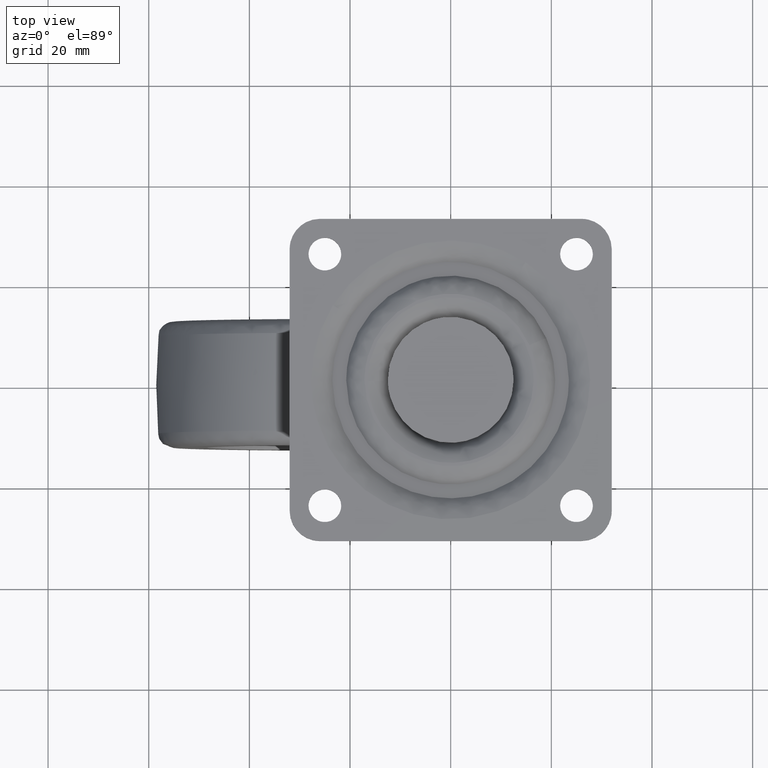
[diagram: clean part render]
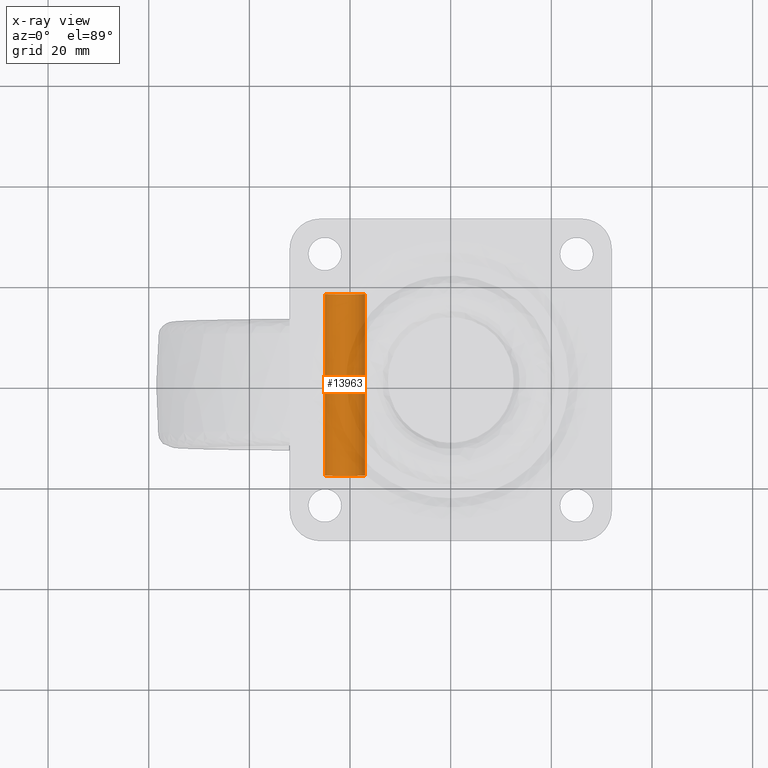
[diagram: x-ray — body ghosted, one internal face saturated and labeled with its STEP entity id]
A machine part, top view, then the same camera in x-ray: the body is ghosted and one INTERNAL B-rep face — a face not visible from any outside direction — is saturated and labeled: STEP entity #13963.
In plain terms, the highlighted face is a freeform B-spline surface patch.
Its self-contained STEP definition (entity closure, byte-faithful):
#13861=CARTESIAN_POINT('',(-17.027961894545335,-18.952500000000001,-56.027863061372976));
#13862=CARTESIAN_POINT('',(-17.014449538205586,-18.952500000000001,-56.141541085448090));
#13863=CARTESIAN_POINT('',(-17.007460806312530,-18.952500000000001,-56.255805841860571));
#13864=CARTESIAN_POINT('',(-16.763266648173104,-18.952500000000011,-60.248345035548041));
#13865=CARTESIAN_POINT('',(-20.755805841860571,-18.952500000000001,-60.492539193687463));
#13866=CARTESIAN_POINT('',(-24.748345035548045,-18.952500000000011,-60.736733351826899));
#13867=CARTESIAN_POINT('',(-24.992539193687470,-18.952500000000001,-56.744194158139429));
#13868=CARTESIAN_POINT('',(-17.027961894545335,18.975062500000011,-56.027863061372976));
#13869=CARTESIAN_POINT('',(-17.014449538205586,18.975062500000007,-56.141541085448090));
#13870=CARTESIAN_POINT('',(-17.007460806312530,18.975062500000000,-56.255805841860571));
#13871=CARTESIAN_POINT('',(-16.763266648173104,18.975062500000007,-60.248345035548041));
#13872=CARTESIAN_POINT('',(-20.755805841860571,18.975062500000000,-60.492539193687463));
#13873=CARTESIAN_POINT('',(-24.748345035548045,18.975062500000007,-60.736733351826899));
#13874=CARTESIAN_POINT('',(-24.992539193687470,18.975062500000000,-56.744194158139429));
#13882=(BOUNDED_SURFACE()B_SPLINE_SURFACE(2,1,((#13861,#13868),(#13862,#13869),(#13863,#13870),(#13864,#13871),(#13865,#13872),(#13866,#13873),(#13867,#13874)),.UNSPECIFIED.,.F.,.F.,.U.)B_SPLINE_SURFACE_WITH_KNOTS((3,2,2,3),(2,2),(0.0,0.265096679918781,6.892513677888302,13.519930675857820),(0.0,37.927562500000022),.UNSPECIFIED.)GEOMETRIC_REPRESENTATION_ITEM()RATIONAL_B_SPLINE_SURFACE(((0.977505800795127,0.977505800795127),(0.988284271247462,0.988284271247462),(1.0,1.0),(0.707106781186548,0.707106781186548),(1.0,1.0),(0.707106781186548,0.707106781186548),(1.0,1.0)))REPRESENTATION_ITEM('')SURFACE());
#13883=CARTESIAN_POINT('',(-17.027961894556871,-18.050000000000001,-56.027863061275880));
#13884=VERTEX_POINT('',#13883);
#13885=CARTESIAN_POINT('',(-21.0,-18.050000000000001,-60.500000000000000));
#13886=VERTEX_POINT('',#13885);
#13887=CARTESIAN_POINT('',(-17.027961894556878,-18.049999999999994,-56.027863061275880));
#13888=CARTESIAN_POINT('',(-17.000000000000004,-18.050000000000004,-56.263103521294241));
#13889=CARTESIAN_POINT('',(-17.0,-18.050000000000001,-56.500000000000000));
#13890=CARTESIAN_POINT('',(-17.000000000000004,-18.049999999999997,-60.500000000000000));
#13891=CARTESIAN_POINT('',(-21.0,-18.050000000000001,-60.500000000000000));
#13899=(BOUNDED_CURVE()B_SPLINE_CURVE(2,(#13887,#13888,#13889,#13890,#13891),.UNSPECIFIED.,.F.,.U.)B_SPLINE_CURVE_WITH_KNOTS((3,2,3),(0.229562473507382,0.250000000000000,0.500000000000000),.UNSPECIFIED.)CURVE()GEOMETRIC_REPRESENTATION_ITEM()RATIONAL_B_SPLINE_CURVE((0.956026754171692,0.976055948323968,1.0,0.707106781186548,1.0))REPRESENTATION_ITEM(''));
#13900=EDGE_CURVE('',#13884,#13886,#13899,.T.);
#13901=ORIENTED_EDGE('',*,*,#13900,.T.);
#13902=CARTESIAN_POINT('',(-24.992539193673050,-18.050000000000001,-56.744194158375137));
#13903=VERTEX_POINT('',#13902);
#13904=CARTESIAN_POINT('',(-21.0,-18.050000000000001,-60.500000000000000));
#13905=CARTESIAN_POINT('',(-24.762824267177649,-18.049999999999997,-60.500000000000000));
#13906=CARTESIAN_POINT('',(-24.992539193673061,-18.050000000000001,-56.744194158375137));
#13914=(BOUNDED_CURVE()B_SPLINE_CURVE(2,(#13904,#13905,#13906),.UNSPECIFIED.,.F.,.U.)B_SPLINE_CURVE_WITH_KNOTS((3,3),(0.500000000000000,0.739332962221595),.UNSPECIFIED.)CURVE()GEOMETRIC_REPRESENTATION_ITEM()RATIONAL_B_SPLINE_CURVE((1.0,0.719603993307035,0.976072041629537))REPRESENTATION_ITEM(''));
#13915=EDGE_CURVE('',#13886,#13903,#13914,.T.);
#13916=ORIENTED_EDGE('',*,*,#13915,.T.);
#13917=CARTESIAN_POINT('',(-24.992539193673050,18.050000000000001,-56.744194158375137));
#13918=VERTEX_POINT('',#13917);
#13919=CARTESIAN_POINT('',(-24.992539193673050,-18.050000000000001,-56.744194158375137));
#13920=CARTESIAN_POINT('',(-24.992539193673050,18.050000000000001,-56.744194158375137));
#13921=QUASI_UNIFORM_CURVE('',1,(#13919,#13920),.UNSPECIFIED.,.F.,.U.);
#13922=EDGE_CURVE('',#13903,#13918,#13921,.T.);
#13923=ORIENTED_EDGE('',*,*,#13922,.T.);
#13924=CARTESIAN_POINT('',(-21.0,18.050000000000001,-60.500000000000000));
#13925=VERTEX_POINT('',#13924);
#13926=CARTESIAN_POINT('',(-21.0,18.050000000000001,-60.500000000000000));
#13927=CARTESIAN_POINT('',(-24.762824267177649,18.049999999999997,-60.500000000000000));
#13928=CARTESIAN_POINT('',(-24.992539193673061,18.050000000000001,-56.744194158375137));
#13936=(BOUNDED_CURVE()B_SPLINE_CURVE(2,(#13926,#13927,#13928),.UNSPECIFIED.,.F.,.U.)B_SPLINE_CURVE_WITH_KNOTS((3,3),(0.500000000000000,0.739332962221595),.UNSPECIFIED.)CURVE()GEOMETRIC_REPRESENTATION_ITEM()RATIONAL_B_SPLINE_CURVE((1.0,0.719603993307035,0.976072041629537))REPRESENTATION_ITEM(''));
#13937=EDGE_CURVE('',#13925,#13918,#13936,.T.);
#13938=ORIENTED_EDGE('',*,*,#13937,.F.);
#13939=CARTESIAN_POINT('',(-17.027961894556871,18.050000000000001,-56.027863061275880));
#13940=VERTEX_POINT('',#13939);
#13941=CARTESIAN_POINT('',(-17.027961894556874,18.050000000000001,-56.027863061275887));
#13942=CARTESIAN_POINT('',(-17.0,18.050000000000004,-56.263103521294241));
#13943=CARTESIAN_POINT('',(-17.0,18.050000000000001,-56.500000000000000));
#13944=CARTESIAN_POINT('',(-17.000000000000004,18.049999999999997,-60.500000000000000));
#13945=CARTESIAN_POINT('',(-21.0,18.050000000000001,-60.500000000000000));
#13953=(BOUNDED_CURVE()B_SPLINE_CURVE(2,(#13941,#13942,#13943,#13944,#13945),.UNSPECIFIED.,.F.,.U.)B_SPLINE_CURVE_WITH_KNOTS((3,2,3),(0.229562473507382,0.250000000000000,0.500000000000000),.UNSPECIFIED.)CURVE()GEOMETRIC_REPRESENTATION_ITEM()RATIONAL_B_SPLINE_CURVE((0.956026754171692,0.976055948323968,1.0,0.707106781186548,1.0))REPRESENTATION_ITEM(''));
#13954=EDGE_CURVE('',#13940,#13925,#13953,.T.);
#13955=ORIENTED_EDGE('',*,*,#13954,.F.);
#13956=CARTESIAN_POINT('',(-17.027961894556871,-18.050000000000001,-56.027863061275880));
#13957=CARTESIAN_POINT('',(-17.027961894556871,18.050000000000001,-56.027863061275880));
#13958=QUASI_UNIFORM_CURVE('',1,(#13956,#13957),.UNSPECIFIED.,.F.,.U.);
#13959=EDGE_CURVE('',#13884,#13940,#13958,.T.);
#13960=ORIENTED_EDGE('',*,*,#13959,.F.);
#13961=EDGE_LOOP('',(#13901,#13916,#13923,#13938,#13955,#13960));
#13962=FACE_OUTER_BOUND('',#13961,.T.);
#13963=ADVANCED_FACE('',(#13962),#13882,.T.);